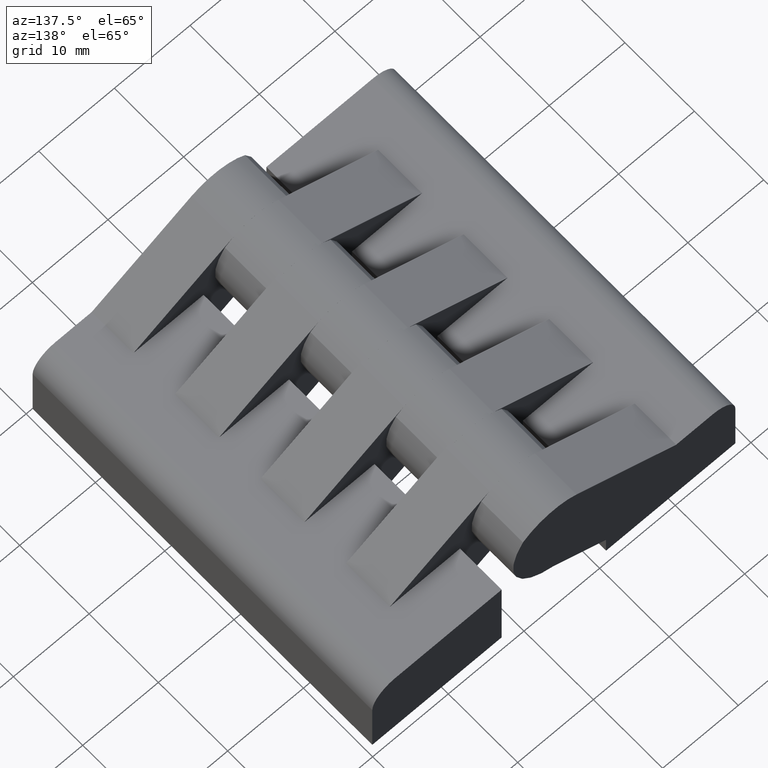
[diagram: clean part render]
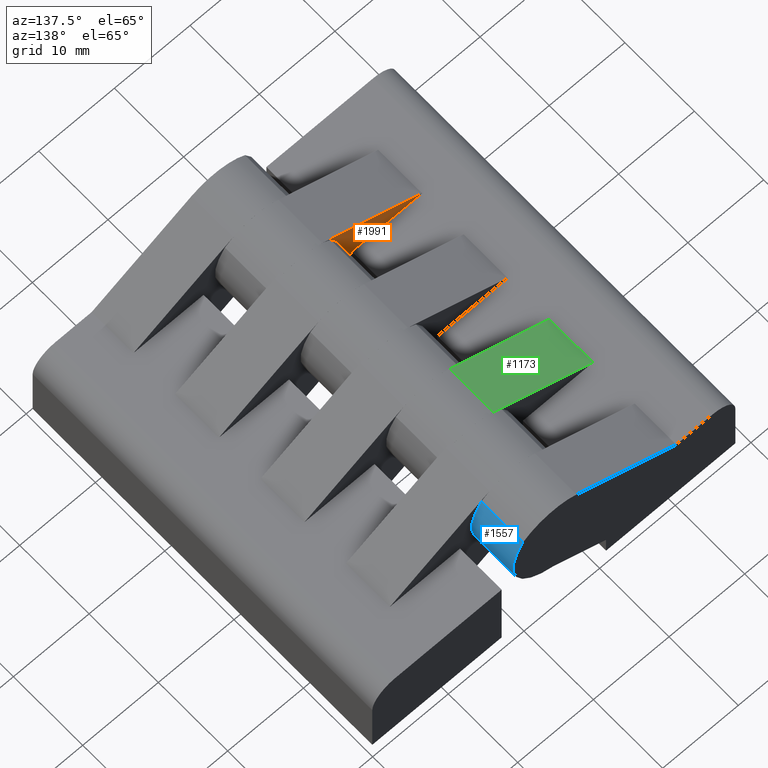
[diagram: same view with three faces highlighted in distinct colors, each labeled with its STEP entity id]
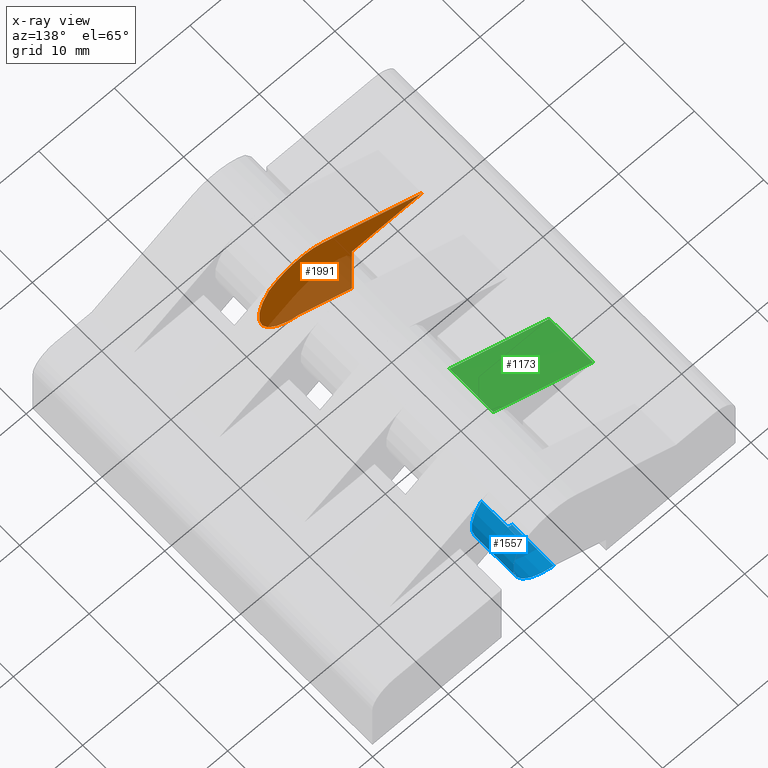
[diagram: x-ray of the same camera — body ghosted, the three highlighted faces saturated]
A machine part, auxiliary view with three faces highlighted in distinct colors.
The next image is the same camera in x-ray (body ghosted, the three faces saturated) — at least one of them is partly hidden behind the body in this view.
Their STEP definitions:

[orange] entity #1991 — the highlighted planar face has unit normal (0, 1, 0).
#1221=CARTESIAN_POINT('',(-0.677568135662625,-27.266666666704317,10.999999999956119));
#1222=VERTEX_POINT('',#1221);
#1237=CARTESIAN_POINT('',(12.499999999950290,-27.266666666704317,18.608072510316276));
#1238=VERTEX_POINT('',#1237);
#1245=CARTESIAN_POINT('',(-0.677568135662625,-27.266666666704317,10.999999999956119));
#1246=DIRECTION('',(0.866025403784456,2.334832E-016,0.499999999999971));
#1247=VECTOR('',#1246,15.216145020721209);
#1248=LINE('',#1245,#1247);
#1249=EDGE_CURVE('',#1222,#1238,#1248,.T.);
#1341=CARTESIAN_POINT('',(19.579659728693457,-27.266666666704317,17.811508306689461));
#1342=VERTEX_POINT('',#1341);
#1349=CARTESIAN_POINT('',(15.499999999938160,-27.266666666704332,13.411920087630682));
#1350=DIRECTION('',(1.224647E-016,-1.000000000000000,6.123234E-017));
#1351=DIRECTION('',(-0.500000000000001,-8.203578E-018,0.866025403784438));
#1352=AXIS2_PLACEMENT_3D('',#1349,#1350,#1351);
#1353=CIRCLE('',#1352,5.999999999975718);
#1354=EDGE_CURVE('',#1342,#1238,#1353,.T.);
#1473=CARTESIAN_POINT('',(15.499999999938154,-27.266666666704317,6.483716857382605));
#1474=VERTEX_POINT('',#1473);
#1481=CARTESIAN_POINT('',(13.473615982476078,-27.266666666704328,13.612043587539976));
#1482=DIRECTION('',(1.224647E-016,-1.000000000000000,6.123234E-017));
#1483=DIRECTION('',(0.823943661413975,1.356026E-016,0.566671724030530));
#1484=AXIS2_PLACEMENT_3D('',#1481,#1482,#1483);
#1485=CIRCLE('',#1484,7.410753953418086);
#1486=EDGE_CURVE('',#1474,#1342,#1485,.T.);
#1625=CARTESIAN_POINT('',(8.599999999965775,-27.266666666704317,2.499999999990111));
#1626=VERTEX_POINT('',#1625);
#1627=CARTESIAN_POINT('',(8.599999999965775,-27.266666666704317,2.499999999990111));
#1628=DIRECTION('',(0.866025403784437,0.0,0.500000000000002));
#1629=VECTOR('',#1628,7.967433714784954);
#1630=LINE('',#1627,#1629);
#1631=EDGE_CURVE('',#1626,#1474,#1630,.T.);
#1966=CARTESIAN_POINT('',(31.237623392759730,-27.266666666704317,-2.400004724463427));
#1967=DIRECTION('',(0.0,1.0,0.0));
#1968=DIRECTION('',(-1.0,0.0,0.0));
#1969=AXIS2_PLACEMENT_3D('',#1966,#1967,#1968);
#1970=PLANE('',#1969);
#1971=CARTESIAN_POINT('',(8.599999999965803,-27.266666666704317,10.999999999956289));
#1972=VERTEX_POINT('',#1971);
#1973=CARTESIAN_POINT('',(8.599999999965803,-27.266666666704321,10.999999999956289));
#1974=DIRECTION('',(-1.0,0.0,0.0));
#1975=VECTOR('',#1974,9.277568135628428);
#1976=LINE('',#1973,#1975);
#1977=EDGE_CURVE('',#1972,#1222,#1976,.T.);
#1978=ORIENTED_EDGE('',*,*,#1977,.T.);
#1979=ORIENTED_EDGE('',*,*,#1249,.T.);
#1980=ORIENTED_EDGE('',*,*,#1354,.F.);
#1981=ORIENTED_EDGE('',*,*,#1486,.F.);
#1982=ORIENTED_EDGE('',*,*,#1631,.F.);
#1983=CARTESIAN_POINT('',(8.599999999965803,-27.266666666704317,2.499999999990111));
#1984=DIRECTION('',(0.0,0.0,1.0));
#1985=VECTOR('',#1984,8.499999999966178);
#1986=LINE('',#1983,#1985);
#1987=EDGE_CURVE('',#1626,#1972,#1986,.T.);
#1988=ORIENTED_EDGE('',*,*,#1987,.T.);
#1989=EDGE_LOOP('',(#1978,#1979,#1980,#1981,#1982,#1988));
#1990=FACE_OUTER_BOUND('',#1989,.T.);
#1991=ADVANCED_FACE('',(#1990),#1970,.T.);

[blue] entity #1557 — the highlighted cylindrical surface (partial cylindrical patch) has radius 7.4108 mm, axis along (-0, 1, -0).
#1399=CARTESIAN_POINT('',(19.579659728693457,3.399999999962351,17.811508306689461));
#1400=VERTEX_POINT('',#1399);
#1408=CARTESIAN_POINT('',(19.579659728693457,9.399999999962352,17.811508306689461));
#1409=VERTEX_POINT('',#1408);
#1410=CARTESIAN_POINT('',(19.579659728693454,3.399999999962354,17.811508306689461));
#1411=DIRECTION('',(0.0,1.0,0.0));
#1412=VECTOR('',#1411,6.0);
#1413=LINE('',#1410,#1412);
#1414=EDGE_CURVE('',#1400,#1409,#1413,.T.);
#1525=CARTESIAN_POINT('',(13.473615982476076,-39.599999999841650,13.612043587539974));
#1526=DIRECTION('',(-1.224647E-016,1.0,-6.123234E-017));
#1527=DIRECTION('',(0.823943661413975,1.356026E-016,0.566671724030530));
#1528=AXIS2_PLACEMENT_3D('',#1525,#1526,#1527);
#1529=CYLINDRICAL_SURFACE('',#1528,7.410753953418086);
#1530=ORIENTED_EDGE('',*,*,#1414,.F.);
#1531=CARTESIAN_POINT('',(15.499999999938154,3.399999999962351,6.483716857382603));
#1532=VERTEX_POINT('',#1531);
#1533=CARTESIAN_POINT('',(13.473615982476080,3.399999999962353,13.612043587539976));
#1534=DIRECTION('',(1.224647E-016,-1.000000000000000,6.123234E-017));
#1535=DIRECTION('',(0.823943661413975,1.356026E-016,0.566671724030530));
#1536=AXIS2_PLACEMENT_3D('',#1533,#1534,#1535);
#1537=CIRCLE('',#1536,7.410753953418086);
#1538=EDGE_CURVE('',#1532,#1400,#1537,.T.);
#1539=ORIENTED_EDGE('',*,*,#1538,.F.);
#1540=CARTESIAN_POINT('',(15.499999999938154,9.399999999962351,6.483716857382603));
#1541=VERTEX_POINT('',#1540);
#1542=CARTESIAN_POINT('',(15.499999999938149,3.399999999962354,6.483716857382603));
#1543=DIRECTION('',(0.0,1.0,0.0));
#1544=VECTOR('',#1543,6.0);
#1545=LINE('',#1542,#1544);
#1546=EDGE_CURVE('',#1532,#1541,#1545,.T.);
#1547=ORIENTED_EDGE('',*,*,#1546,.T.);
#1548=CARTESIAN_POINT('',(13.473615982476081,9.399999999962354,13.612043587539979));
#1549=DIRECTION('',(-1.224647E-016,1.000000000000000,-6.123234E-017));
#1550=DIRECTION('',(0.823943661413975,1.356026E-016,0.566671724030530));
#1551=AXIS2_PLACEMENT_3D('',#1548,#1549,#1550);
#1552=CIRCLE('',#1551,7.410753953418086);
#1553=EDGE_CURVE('',#1409,#1541,#1552,.T.);
#1554=ORIENTED_EDGE('',*,*,#1553,.F.);
#1555=EDGE_LOOP('',(#1530,#1539,#1547,#1554));
#1556=FACE_OUTER_BOUND('',#1555,.T.);
#1557=ADVANCED_FACE('',(#1556),#1529,.T.);

[green] entity #1173 — the highlighted planar face has unit normal (-0.5, -0, 0.866).
#1134=CARTESIAN_POINT('',(-0.677568135662625,-39.599999999841650,10.999999999956119));
#1135=DIRECTION('',(-0.499999999999971,-8.203578E-018,0.866025403784455));
#1136=DIRECTION('',(0.866025403784455,1.366737E-016,0.499999999999971));
#1137=AXIS2_PLACEMENT_3D('',#1134,#1135,#1136);
#1138=PLANE('',#1137);
#1139=CARTESIAN_POINT('',(-0.677568135662625,-8.933333333370982,10.999999999956117));
#1140=VERTEX_POINT('',#1139);
#1141=CARTESIAN_POINT('',(-0.677568135662625,-2.600000000037652,10.999999999956117));
#1142=VERTEX_POINT('',#1141);
#1143=CARTESIAN_POINT('',(-0.677568135662629,-8.933333333370978,10.999999999956117));
#1144=DIRECTION('',(0.0,1.0,0.0));
#1145=VECTOR('',#1144,6.333333333333332);
#1146=LINE('',#1143,#1145);
#1147=EDGE_CURVE('',#1140,#1142,#1146,.T.);
#1148=ORIENTED_EDGE('',*,*,#1147,.F.);
#1149=CARTESIAN_POINT('',(12.499999999950290,-8.933333333370980,18.608072510316276));
#1150=VERTEX_POINT('',#1149);
#1151=CARTESIAN_POINT('',(-0.677568135662625,-8.933333333370982,10.999999999956117));
#1152=DIRECTION('',(0.866025403784456,1.167416E-016,0.499999999999971));
#1153=VECTOR('',#1152,15.216145020721209);
#1154=LINE('',#1151,#1153);
#1155=EDGE_CURVE('',#1140,#1150,#1154,.T.);
#1156=ORIENTED_EDGE('',*,*,#1155,.T.);
#1157=CARTESIAN_POINT('',(12.499999999950290,-2.600000000037645,18.608072510316276));
#1158=VERTEX_POINT('',#1157);
#1159=CARTESIAN_POINT('',(12.499999999950287,-8.933333333370978,18.608072510316276));
#1160=DIRECTION('',(0.0,1.0,0.0));
#1161=VECTOR('',#1160,6.333333333333332);
#1162=LINE('',#1159,#1161);
#1163=EDGE_CURVE('',#1150,#1158,#1162,.T.);
#1164=ORIENTED_EDGE('',*,*,#1163,.T.);
#1165=CARTESIAN_POINT('',(-0.677568135662625,-2.600000000037652,10.999999999956117));
#1166=DIRECTION('',(0.866025403784456,1.459270E-016,0.499999999999971));
#1167=VECTOR('',#1166,15.216145020721209);
#1168=LINE('',#1165,#1167);
#1169=EDGE_CURVE('',#1142,#1158,#1168,.T.);
#1170=ORIENTED_EDGE('',*,*,#1169,.F.);
#1171=EDGE_LOOP('',(#1148,#1156,#1164,#1170));
#1172=FACE_OUTER_BOUND('',#1171,.T.);
#1173=ADVANCED_FACE('',(#1172),#1138,.T.);